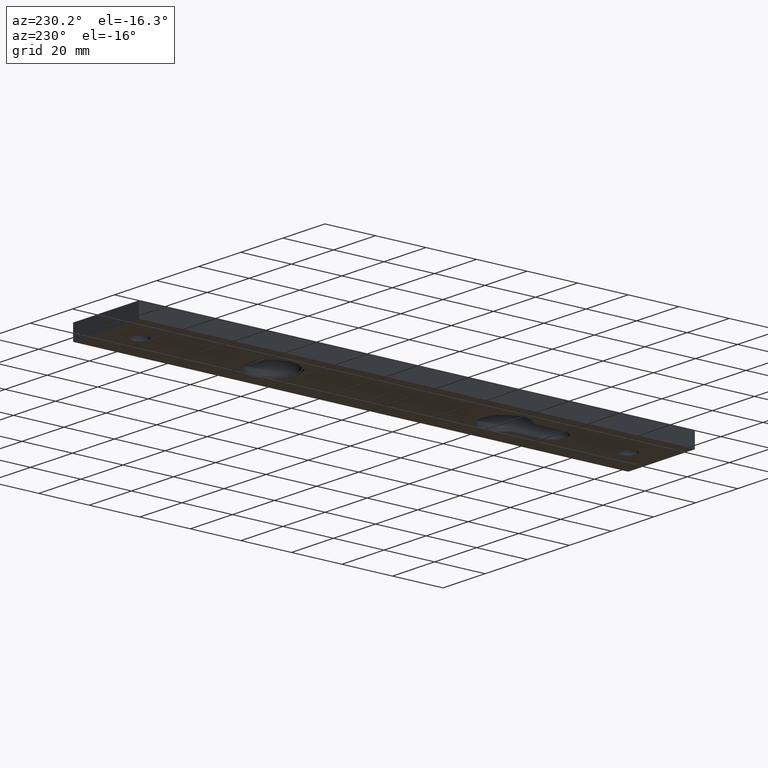
[diagram: clean part render]
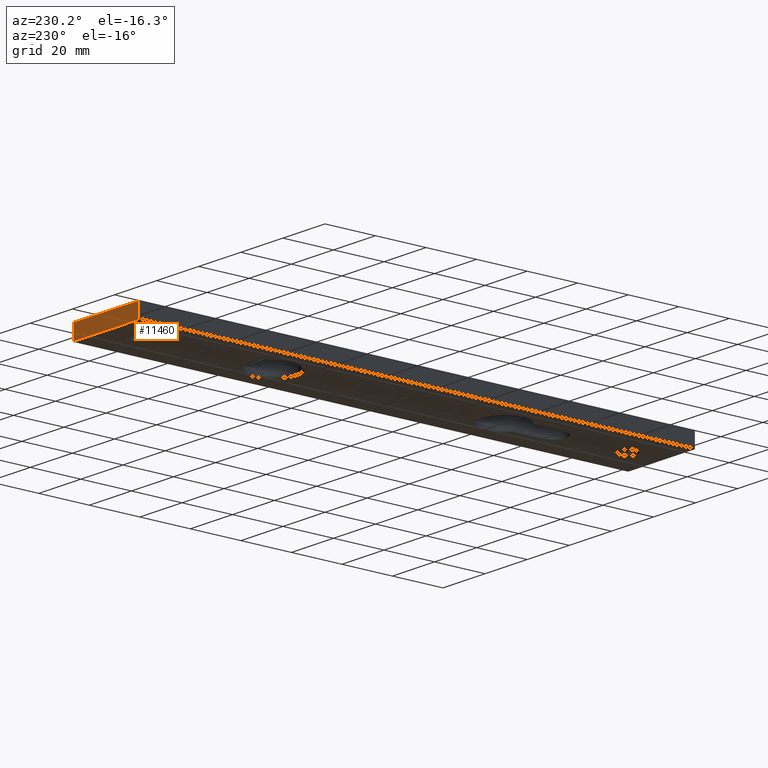
[diagram: same view with one face highlighted and labeled with its STEP entity id]
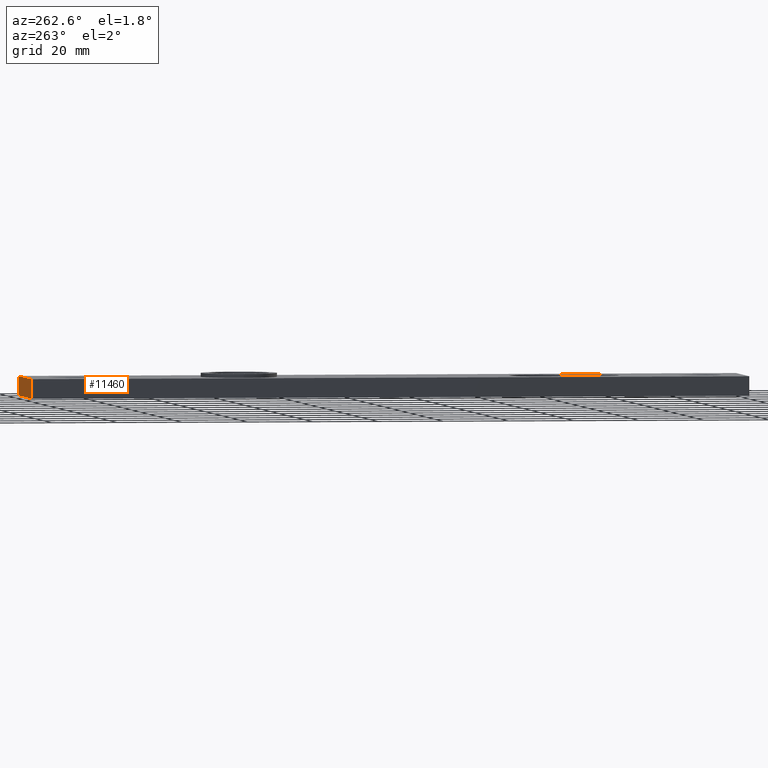
[diagram: same view with one face highlighted and labeled with its STEP entity id]
A machine part, auxiliary view. The second image highlights one B-rep face of the part: STEP entity #11460.
A second angle (auxiliary view) of the same face is appended — the face is thin or edge-on in the first view.
In plain terms, the highlighted planar face has unit normal (-0, -1, 0).
Its self-contained STEP definition (entity closure, byte-faithful):
#1400 = DIRECTION ( 'NONE',  ( -4.336808689942017700E-016, -1.000000000000000000, 0.0000000000000000000 ) ) ;
#1533 = VERTEX_POINT ( 'NONE', #3933 ) ;
#2060 = CARTESIAN_POINT ( 'NONE',  ( -16.00000000000000700, 109.9999999999999900, 6.000000000000000000 ) ) ;
#2189 = DIRECTION ( 'NONE',  ( -0.0000000000000000000, -0.0000000000000000000, 1.000000000000000000 ) ) ;
#2353 = CARTESIAN_POINT ( 'NONE',  ( -15.50000000000000700, 109.9999999999999900, 0.0000000000000000000 ) ) ;
#2442 = CARTESIAN_POINT ( 'NONE',  ( -15.50000000000000700, 109.9999999999999900, 6.000000000000000000 ) ) ;
#2488 = ORIENTED_EDGE ( 'NONE', *, *, #3998, .T. ) ;
#2847 = VECTOR ( 'NONE', #2189, 1000.000000000000000 ) ;
#3302 = FACE_OUTER_BOUND ( 'NONE', #4284, .T. ) ;
#3933 = CARTESIAN_POINT ( 'NONE',  ( 15.49999999999999300, 109.9999999999999700, 6.000000000000000000 ) ) ;
#3998 = EDGE_CURVE ( 'NONE', #11181, #6915, #4299, .T. ) ;
#4042 = DIRECTION ( 'NONE',  ( -1.000000000000000000, 4.336808689942017700E-016, -0.0000000000000000000 ) ) ;
#4284 = EDGE_LOOP ( 'NONE', ( #2488, #10685, #4882, #9555 ) ) ;
#4299 = LINE ( 'NONE', #5831, #9641 ) ;
#4629 = EDGE_CURVE ( 'NONE', #1533, #11181, #8584, .T. ) ;
#4882 = ORIENTED_EDGE ( 'NONE', *, *, #11253, .F. ) ;
#5299 = CARTESIAN_POINT ( 'NONE',  ( 15.49999999999999300, 109.9999999999999700, 6.000000000000000000 ) ) ;
#5366 = VECTOR ( 'NONE', #4042, 1000.000000000000000 ) ;
#5517 = CARTESIAN_POINT ( 'NONE',  ( 15.49999999999999300, 109.9999999999999700, 0.0000000000000000000 ) ) ;
#5753 = CARTESIAN_POINT ( 'NONE',  ( -15.50000000000000700, 109.9999999999999900, 6.000000000000000000 ) ) ;
#5831 = CARTESIAN_POINT ( 'NONE',  ( -16.00000000000000700, 109.9999999999999900, 0.0000000000000000000 ) ) ;
#5994 = DIRECTION ( 'NONE',  ( 1.000000000000000000, -4.336808689942017700E-016, 0.0000000000000000000 ) ) ;
#6353 = LINE ( 'NONE', #5753, #2847 ) ;
#6915 = VERTEX_POINT ( 'NONE', #2353 ) ;
#7626 = AXIS2_PLACEMENT_3D ( 'NONE', #10487, #1400, #5994 ) ;
#8584 = LINE ( 'NONE', #5299, #10574 ) ;
#8623 = LINE ( 'NONE', #2060, #5366 ) ;
#8711 = PLANE ( 'NONE',  #7626 ) ;
#9400 = VERTEX_POINT ( 'NONE', #2442 ) ;
#9555 = ORIENTED_EDGE ( 'NONE', *, *, #4629, .T. ) ;
#9573 = DIRECTION ( 'NONE',  ( -1.000000000000000000, 4.336808689942017700E-016, -0.0000000000000000000 ) ) ;
#9641 = VECTOR ( 'NONE', #9573, 1000.000000000000000 ) ;
#9789 = EDGE_CURVE ( 'NONE', #6915, #9400, #6353, .T. ) ;
#9865 = DIRECTION ( 'NONE',  ( 0.0000000000000000000, 0.0000000000000000000, -1.000000000000000000 ) ) ;
#10487 = CARTESIAN_POINT ( 'NONE',  ( -16.00000000000000700, 109.9999999999999900, 6.000000000000000000 ) ) ;
#10574 = VECTOR ( 'NONE', #9865, 1000.000000000000000 ) ;
#10685 = ORIENTED_EDGE ( 'NONE', *, *, #9789, .T. ) ;
#11181 = VERTEX_POINT ( 'NONE', #5517 ) ;
#11253 = EDGE_CURVE ( 'NONE', #1533, #9400, #8623, .T. ) ;
#11460 = ADVANCED_FACE ( 'NONE', ( #3302 ), #8711, .F. ) ;